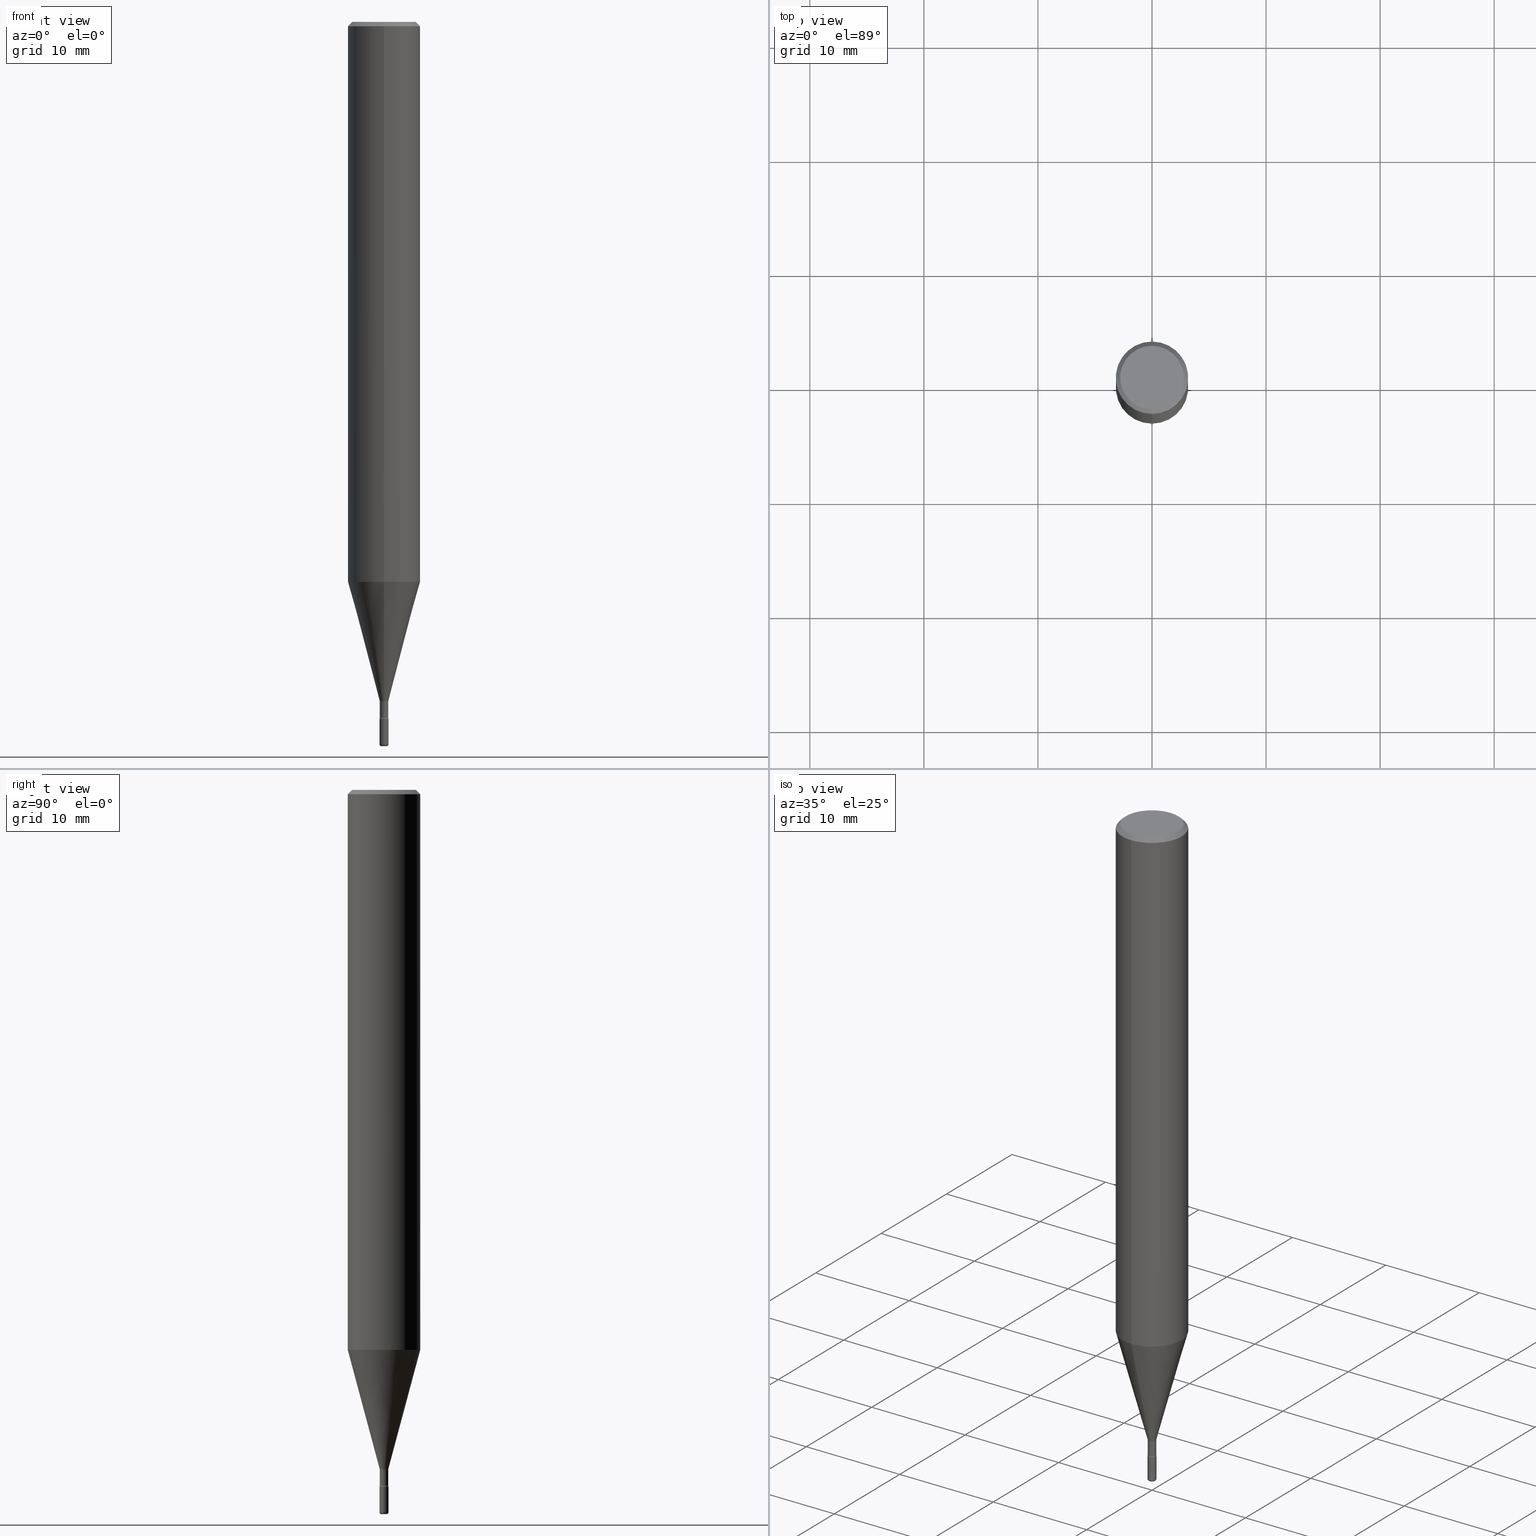
[diagram: canonical four-view strip — front | top / right | iso, engineering-drawing reading convention]
A machine part, canonical four-view strip (front | top / right | iso — engineering-drawing reading convention). The complete STEP part file that produces these views, byte-faithful:
ISO-10303-21;
HEADER;
FILE_DESCRIPTION (( 'STEP AP203' ),
    '1' );
FILE_NAME ('05275.STEP',
    '2024-03-06T20:01:45',
    ( '' ),
    ( '' ),
    'SwSTEP 2.0',
    'SolidWorks 2023',
    '' );
FILE_SCHEMA (( 'CONFIG_CONTROL_DESIGN' ));
ENDSEC;

DATA;
#1 = DIRECTION ( 'NONE',  ( 1.000000000000000000, -6.982962677686283277E-15, 0.000000000000000000 ) ) ;
#2 = ORIENTED_EDGE ( 'NONE', *, *, #518, .F. ) ;
#3 = APPROVAL_ROLE ( '' ) ;
#4 = CC_DESIGN_PERSON_AND_ORGANIZATION_ASSIGNMENT ( #317, #90, ( #110 ) ) ;
#5 = CARTESIAN_POINT ( 'NONE',  ( 8.728703347107836346E-16, 0.1249999999999999445, -0.01500000000000044874 ) ) ;
#6 = ORIENTED_EDGE ( 'NONE', *, *, #202, .F. ) ;
#7 = CYLINDRICAL_SURFACE ( 'NONE', #273, 0.1250000000000000000 ) ;
#8 =( NAMED_UNIT ( * ) PLANE_ANGLE_UNIT ( ) SI_UNIT ( $, .RADIAN. ) );
#9 = EDGE_LOOP ( 'NONE', ( #215, #171, #40, #535 ) ) ;
#10 = APPROVAL_STATUS ( 'not_yet_approved' ) ;
#11 = DIRECTION ( 'NONE',  ( 1.000000000000000000, -6.982962677686283277E-15, 0.000000000000000000 ) ) ;
#12 = AXIS2_PLACEMENT_3D ( 'NONE', #65, #329, #70 ) ;
#13 = EDGE_LOOP ( 'NONE', ( #430, #305, #126, #563 ) ) ;
#14 = LINE ( 'NONE', #183, #230 ) ;
#15 = DIRECTION ( 'NONE',  ( -2.445504170649679612E-29, 3.491430694917099682E-15, 1.000000000000000000 ) ) ;
#16 = LOCAL_TIME ( 15, 1, 45.00000000000000000, #186 ) ;
#17 = EDGE_CURVE ( 'NONE', #343, #174, #294, .T. ) ;
#18 = VERTEX_POINT ( 'NONE', #242 ) ;
#19 = DIRECTION ( 'NONE',  ( -2.445504170649679612E-29, 3.491430694917099682E-15, 1.000000000000000000 ) ) ;
#20 = CC_DESIGN_DATE_AND_TIME_ASSIGNMENT ( #360, #536, ( #66 ) ) ;
#21 = PLANE ( 'NONE',  #41 ) ;
#22 = DIRECTION ( 'NONE',  ( -6.982962677686266711E-15, -1.000000000000000000, 0.000000000000000000 ) ) ;
#23 = CONICAL_SURFACE ( 'NONE', #413, 0.1250000000000000000, 0.7853981633974480570 ) ;
#24 = CYLINDRICAL_SURFACE ( 'NONE', #346, 0.1250000000000000000 ) ;
#25 = CIRCLE ( 'NONE', #480, 0.01516111260566397993 ) ;
#26 = AXIS2_PLACEMENT_3D ( 'NONE', #71, #385, #433 ) ;
#27 = CARTESIAN_POINT ( 'NONE',  ( 4.727570879489775223E-29, -6.749522768821041427E-15, -1.933168193384775746 ) ) ;
#28 = DIRECTION ( 'NONE',  ( -2.445468806185136877E-29, 3.491481338843145188E-15, 1.000000000000000000 ) ) ;
#29 = ORIENTED_EDGE ( 'NONE', *, *, #378, .F. ) ;
#30 = DIRECTION ( 'NONE',  ( -2.445504170649679612E-29, 3.491430694917099682E-15, 1.000000000000000000 ) ) ;
#31 = EDGE_CURVE ( 'NONE', #48, #134, #43, .T. ) ;
#32 = VERTEX_POINT ( 'NONE', #114 ) ;
#33 = AXIS2_PLACEMENT_3D ( 'NONE', #545, #381, #373 ) ;
#34 = ORIENTED_EDGE ( 'NONE', *, *, #197, .F. ) ;
#35 = LOCAL_TIME ( 15, 1, 45.00000000000000000, #83 ) ;
#36 = AXIS2_PLACEMENT_3D ( 'NONE', #253, #104, #462 ) ;
#37 = CARTESIAN_POINT ( 'NONE',  ( 1.077261842800115440E-16, 0.01516111260565579898, -2.343092501787273463 ) ) ;
#38 = EDGE_LOOP ( 'NONE', ( #143, #402, #57, #348 ) ) ;
#39 = CARTESIAN_POINT ( 'NONE',  ( 3.297419770608785039E-46, -4.702870233423703319E-32, -1.347668562248585984E-17 ) ) ;
#40 = ORIENTED_EDGE ( 'NONE', *, *, #341, .T. ) ;
#41 = AXIS2_PLACEMENT_3D ( 'NONE', #150, #460, #335 ) ;
#42 = VERTEX_POINT ( 'NONE', #473 ) ;
#43 = CIRCLE ( 'NONE', #115, 0.1250000000000000000 ) ;
#44 = AXIS2_PLACEMENT_3D ( 'NONE', #363, #533, #408 ) ;
#45 = EDGE_LOOP ( 'NONE', ( #255, #352 ) ) ;
#46 = PERSON_AND_ORGANIZATION ( #166, #396 ) ;
#47 = APPLICATION_CONTEXT ( 'configuration controlled 3d designs of mechanical parts and assemblies' ) ;
#48 = VERTEX_POINT ( 'NONE', #69 ) ;
#49 = PERSON_AND_ORGANIZATION ( #166, #396 ) ;
#50 = CALENDAR_DATE ( 2024, 6, 3 ) ;
#51 = EDGE_CURVE ( 'NONE', #164, #174, #73, .T. ) ;
#52 = CARTESIAN_POINT ( 'NONE',  ( 2.106759211529284454E-16, 0.02964999999999162403, -2.400746667724196204 ) ) ;
#53 = VECTOR ( 'NONE', #60, 39.37007874015748143 ) ;
#54 = PERSON_AND_ORGANIZATION ( #166, #396 ) ;
#55 = DIRECTION ( 'NONE',  ( 2.438088387897960049E-29, -3.491481338843145188E-15, -1.000000000000000000 ) ) ;
#56 = DATE_AND_TIME ( #50, #35 ) ;
#57 = ORIENTED_EDGE ( 'NONE', *, *, #333, .T. ) ;
#58 = CARTESIAN_POINT ( 'NONE',  ( -8.061085147381546509E-16, -0.1100000000000000006, 3.705806908183951404E-16 ) ) ;
#59 = ORIENTED_EDGE ( 'NONE', *, *, #220, .T. ) ;
#60 = DIRECTION ( 'NONE',  ( -2.445468806185136877E-29, 3.491481338843145188E-15, 1.000000000000000000 ) ) ;
#61 = DIRECTION ( 'NONE',  ( 1.000000000000000000, -6.982962677686283277E-15, 0.000000000000000000 ) ) ;
#62 = CARTESIAN_POINT ( 'NONE',  ( 8.881784197001729584E-16, 0.1249999999999999584, -0.01500000000000044874 ) ) ;
#63 = CARTESIAN_POINT ( 'NONE',  ( -2.070448433933404278E-16, -0.02965000000000820105, -2.346974787463811385 ) ) ;
#64 = FACE_OUTER_BOUND ( 'NONE', #531, .T. ) ;
#65 = CARTESIAN_POINT ( 'NONE',  ( 6.113672015462842613E-29, -8.728703347107864943E-15, -2.500000000000000000 ) ) ;
#66 = SECURITY_CLASSIFICATION ( '', '', #401 ) ;
#67 = ORIENTED_EDGE ( 'NONE', *, *, #463, .T. ) ;
#68 = CARTESIAN_POINT ( 'NONE',  ( 3.668256255974522361E-31, -5.237146042375653862E-17, -0.01500000000000001332 ) ) ;
#69 = CARTESIAN_POINT ( 'NONE',  ( -8.728703347107362044E-16, -0.1250000000000067724, -1.933168193384775080 ) ) ;
#70 = DIRECTION ( 'NONE',  ( 1.000000000000000000, -6.982962677686352696E-15, 0.000000000000000000 ) ) ;
#71 = CARTESIAN_POINT ( 'NONE',  ( 3.668256255974522361E-31, -5.237146042375653862E-17, -0.01500000000000001332 ) ) ;
#72 = ORIENTED_EDGE ( 'NONE', *, *, #561, .F. ) ;
#73 = CIRCLE ( 'NONE', #36, 0.1250000000000000000 ) ;
#74 = AXIS2_PLACEMENT_3D ( 'NONE', #153, #108, #427 ) ;
#75 = DIRECTION ( 'NONE',  ( 1.000000000000000000, -6.982962677686265922E-15, 4.876176775795935793E-29 ) ) ;
#76 = VERTEX_POINT ( 'NONE', #552 ) ;
#77 = ORIENTED_EDGE ( 'NONE', *, *, #146, .F. ) ;
#78 = LENGTH_MEASURE_WITH_UNIT ( LENGTH_MEASURE( 0.02539999999999999897 ), #213 );
#79 = CIRCLE ( 'NONE', #565, 0.01559999999999999928 ) ;
#80 = EDGE_CURVE ( 'NONE', #42, #409, #359, .T. ) ;
#81 = FACE_OUTER_BOUND ( 'NONE', #208, .T. ) ;
#82 = ORIENTED_EDGE ( 'NONE', *, *, #252, .T. ) ;
#83 = COORDINATED_UNIVERSAL_TIME_OFFSET ( 5, 0, .BEHIND. ) ;
#84 = FACE_OUTER_BOUND ( 'NONE', #225, .T. ) ;
#85 = ADVANCED_FACE ( 'NONE', ( #163 ), #331, .T. ) ;
#86 = CARTESIAN_POINT ( 'NONE',  ( 5.871035988592842602E-29, -8.382040606412200561E-15, -2.400746667724196204 ) ) ;
#87 = EDGE_LOOP ( 'NONE', ( #492, #176, #185, #375 ) ) ;
#88 = DIRECTION ( 'NONE',  ( 1.000000000000000000, -6.982962677686283277E-15, 0.000000000000000000 ) ) ;
#89 = FACE_OUTER_BOUND ( 'NONE', #256, .T. ) ;
#90 = PERSON_AND_ORGANIZATION_ROLE ( 'design_owner' ) ;
#91 = EDGE_CURVE ( 'NONE', #130, #267, #141, .T. ) ;
#92 = LINE ( 'NONE', #278, #118 ) ;
#93 = TOROIDAL_SURFACE ( 'NONE', #393, 0.009599999999999999159, 0.005999999999999941144 ) ;
#94 = AXIS2_PLACEMENT_3D ( 'NONE', #95, #137, #450 ) ;
#95 = CARTESIAN_POINT ( 'NONE',  ( 5.739536631152396078E-29, -8.194299813147687429E-15, -2.346974787463811385 ) ) ;
#96 = LINE ( 'NONE', #370, #568 ) ;
#97 = AXIS2_PLACEMENT_3D ( 'NONE', #27, #30, #113 ) ;
#98 = DIRECTION ( 'NONE',  ( 1.000000000000000000, -6.982962677686310098E-15, 4.883557194083128035E-29 ) ) ;
#99 = CARTESIAN_POINT ( 'NONE',  ( 6.098999202625731237E-29, -8.707754459074805322E-15, -2.494000000000000217 ) ) ;
#100 = CC_DESIGN_APPROVAL ( #326, ( #194 ) ) ;
#101 = AXIS2_PLACEMENT_3D ( 'NONE', #429, #200, #22 ) ;
#102 = EDGE_LOOP ( 'NONE', ( #145, #400 ) ) ;
#103 = DIRECTION ( 'NONE',  ( -6.982962677686265922E-15, -1.000000000000000000, 3.491430694917099682E-15 ) ) ;
#104 = DIRECTION ( 'NONE',  ( -2.445504170649679612E-29, 3.491430694917099682E-15, 1.000000000000000000 ) ) ;
#105 = DATE_AND_TIME ( #239, #265 ) ;
#106 = ADVANCED_FACE ( 'NONE', ( #289 ), #407, .F. ) ;
#107 = FACE_OUTER_BOUND ( 'NONE', #210, .T. ) ;
#108 = DIRECTION ( 'NONE',  ( -2.445468806185136597E-29, 3.491481338843145583E-15, 1.000000000000000000 ) ) ;
#109 = DESIGN_CONTEXT ( 'detailed design', #47, 'design' ) ;
#110 = PRODUCT ( '05275', '05275', '', ( #277 ) ) ;
#111 = AXIS2_PLACEMENT_3D ( 'NONE', #474, #206, #241 ) ;
#112 = ADVANCED_FACE ( 'NONE', ( #476 ), #549, .T. ) ;
#113 = DIRECTION ( 'NONE',  ( -6.982962677686265922E-15, -1.000000000000000000, 4.370956789862821150E-15 ) ) ;
#114 = CARTESIAN_POINT ( 'NONE',  ( -1.089342177718470831E-16, -0.01560000000000842484, -2.406000000000000139 ) ) ;
#115 = AXIS2_PLACEMENT_3D ( 'NONE', #337, #212, #516 ) ;
#116 = CYLINDRICAL_SURFACE ( 'NONE', #218, 0.01464999999999997554 ) ;
#117 = DIRECTION ( 'NONE',  ( -2.445504170649679612E-29, 3.491430694917099682E-15, 1.000000000000000000 ) ) ;
#118 = VECTOR ( 'NONE', #272, 39.37007874015748854 ) ;
#119 = CARTESIAN_POINT ( 'NONE',  ( -1.023004032280447656E-16, -0.01465000000000833691, -2.400746667724196204 ) ) ;
#120 = MANIFOLD_SOLID_BREP ( 'Body-Move/Copy2[2]', #499 ) ;
#121 = EDGE_LOOP ( 'NONE', ( #222, #391, #389, #34 ) ) ;
#122 = CIRCLE ( 'NONE', #203, 0.01464999999999995473 ) ;
#123 = MANIFOLD_SOLID_BREP ( 'Body-Move/Copy2[1]', #394 ) ;
#124 = AXIS2_PLACEMENT_3D ( 'NONE', #432, #129, #388 ) ;
#125 = CARTESIAN_POINT ( 'NONE',  ( 6.703644170584928965E-17, 0.009599999999991271765, -2.500000000000000000 ) ) ;
#126 = ORIENTED_EDGE ( 'NONE', *, *, #445, .F. ) ;
#127 = CARTESIAN_POINT ( 'NONE',  ( 5.883797947681438535E-29, -8.400504101256608072E-15, -2.406000000000000139 ) ) ;
#128 = VERTEX_POINT ( 'NONE', #398 ) ;
#129 = DIRECTION ( 'NONE',  ( -2.445504170649679612E-29, 3.491430694917099682E-15, 1.000000000000000000 ) ) ;
#130 = VERTEX_POINT ( 'NONE', #491 ) ;
#131 = PERSON_AND_ORGANIZATION_ROLE ( 'classification_officer' ) ;
#132 = FACE_OUTER_BOUND ( 'NONE', #311, .T. ) ;
#133 = EDGE_CURVE ( 'NONE', #223, #149, #229, .T. ) ;
#134 = VERTEX_POINT ( 'NONE', #157 ) ;
#135 = CARTESIAN_POINT ( 'NONE',  ( -1.058694834774930434E-16, -0.01516111260567216089, -2.343092501787273463 ) ) ;
#136 = ORIENTED_EDGE ( 'NONE', *, *, #371, .F. ) ;
#137 = DIRECTION ( 'NONE',  ( -2.445504170649679612E-29, 3.491430694917099682E-15, 1.000000000000000000 ) ) ;
#138 = AXIS2_PLACEMENT_3D ( 'NONE', #198, #377, #103 ) ;
#139 = APPROVAL_DATE_TIME ( #412, #326 ) ;
#140 = CARTESIAN_POINT ( 'NONE',  ( 5.730042485338768716E-29, -8.180745081770186080E-15, -2.343092501787273463 ) ) ;
#141 = CIRCLE ( 'NONE', #74, 0.009600000000000000894 ) ;
#142 = CIRCLE ( 'NONE', #124, 0.01464999999999999983 ) ;
#143 = ORIENTED_EDGE ( 'NONE', *, *, #80, .F. ) ;
#144 = LINE ( 'NONE', #361, #53 ) ;
#145 = ORIENTED_EDGE ( 'NONE', *, *, #543, .F. ) ;
#146 = EDGE_CURVE ( 'NONE', #149, #223, #122, .T. ) ;
#147 = DIRECTION ( 'NONE',  ( -2.445504170649679612E-29, 3.491430694917099682E-15, 1.000000000000000000 ) ) ;
#148 = TOROIDAL_SURFACE ( 'NONE', #138, 0.02965000000000000274, 0.01500000000000002720 ) ;
#149 = VERTEX_POINT ( 'NONE', #162 ) ;
#150 = CARTESIAN_POINT ( 'NONE',  ( 1.089342177719645864E-16, 0.01559999999999159802, -2.406000000000000139 ) ) ;
#151 = CARTESIAN_POINT ( 'NONE',  ( -8.728703347107828458E-16, -0.1250000000000000555, -0.01499999999999957791 ) ) ;
#152 = VECTOR ( 'NONE', #28, 39.37007874015748143 ) ;
#153 = CARTESIAN_POINT ( 'NONE',  ( 6.113672015462842613E-29, -8.728703347107864943E-15, -2.500000000000000000 ) ) ;
#154 = DIRECTION ( 'NONE',  ( -1.000000000000000000, 6.982962677686265922E-15, -4.883557194083112340E-29 ) ) ;
#155 = ORIENTED_EDGE ( 'NONE', *, *, #571, .F. ) ;
#156 = ORIENTED_EDGE ( 'NONE', *, *, #426, .F. ) ;
#157 = CARTESIAN_POINT ( 'NONE',  ( 8.881784197001723668E-16, 0.1249999999999932554, -1.933168193384776190 ) ) ;
#158 = DIRECTION ( 'NONE',  ( 6.982962677686265922E-15, 1.000000000000000000, -3.483106191921935554E-15 ) ) ;
#159 = ORIENTED_EDGE ( 'NONE', *, *, #445, .T. ) ;
#160 = ADVANCED_FACE ( 'NONE', ( #520 ), #93, .T. ) ;
#161 = CARTESIAN_POINT ( 'NONE',  ( 6.098999202625731237E-29, -8.707754459074805322E-15, -2.494000000000000217 ) ) ;
#162 = CARTESIAN_POINT ( 'NONE',  ( 1.074695887837739447E-16, 0.01464999999999157601, -2.400746667724196204 ) ) ;
#163 = FACE_OUTER_BOUND ( 'NONE', #13, .T. ) ;
#164 = VERTEX_POINT ( 'NONE', #62 ) ;
#165 = DIRECTION ( 'NONE',  ( -6.982962677686266711E-15, -1.000000000000000000, 3.491430694917099682E-15 ) ) ;
#166 = PERSON ( 'UNSPECIFIED', 'UNSPECIFIED', 'UNSPECIFIED', ('UNSPECIFIED'), ('UNSPECIFIED'), ('UNSPECIFIED') ) ;
#167 = ORIENTED_EDGE ( 'NONE', *, *, #146, .T. ) ;
#168 = AXIS2_PLACEMENT_3D ( 'NONE', #63, #209, #196 ) ;
#169 = DIRECTION ( 'NONE',  ( -2.445504170649679612E-29, 3.491430694917099682E-15, 1.000000000000000000 ) ) ;
#170 = CIRCLE ( 'NONE', #245, 0.01559999999999999928 ) ;
#171 = ORIENTED_EDGE ( 'NONE', *, *, #561, .T. ) ;
#172 = AXIS2_PLACEMENT_3D ( 'NONE', #52, #187, #321 ) ;
#173 = LINE ( 'NONE', #5, #221 ) ;
#174 = VERTEX_POINT ( 'NONE', #151 ) ;
#175 = DIRECTION ( 'NONE',  ( -2.445504170649679612E-29, 3.491430694917099682E-15, 1.000000000000000000 ) ) ;
#176 = ORIENTED_EDGE ( 'NONE', *, *, #249, .F. ) ;
#177 = PERSON_AND_ORGANIZATION ( #166, #396 ) ;
#178 = ADVANCED_FACE ( 'NONE', ( #64 ), #24, .T. ) ;
#179 = CIRCLE ( 'NONE', #12, 0.009600000000000000894 ) ;
#180 = CARTESIAN_POINT ( 'NONE',  ( 0.009599999999999999159, -8.774790900780594215E-15, -2.494000000000000217 ) ) ;
#181 = ORIENTED_EDGE ( 'NONE', *, *, #133, .F. ) ;
#182 = CALENDAR_DATE ( 2024, 6, 3 ) ;
#183 = CARTESIAN_POINT ( 'NONE',  ( 8.881784197001251337E-16, 0.1250000000000000000, 4.164456202660859682E-17 ) ) ;
#184 = DIRECTION ( 'NONE',  ( -1.000000000000000000, 6.982962677686265922E-15, -4.876176775795935793E-29 ) ) ;
#185 = ORIENTED_EDGE ( 'NONE', *, *, #197, .T. ) ;
#186 = COORDINATED_UNIVERSAL_TIME_OFFSET ( 5, 0, .BEHIND. ) ;
#187 = DIRECTION ( 'NONE',  ( 1.000000000000000000, -7.105427357601001070E-15, 4.926314888332863338E-29 ) ) ;
#188 = EDGE_CURVE ( 'NONE', #567, #76, #467, .T. ) ;
#189 = APPROVAL_DATE_TIME ( #105, #211 ) ;
#190 = CIRCLE ( 'NONE', #94, 0.01464999999999999983 ) ;
#191 = AXIS2_PLACEMENT_3D ( 'NONE', #447, #227, #276 ) ;
#192 = ORIENTED_EDGE ( 'NONE', *, *, #243, .F. ) ;
#193 = CARTESIAN_POINT ( 'NONE',  ( -1.169113584055446105E-44, 1.669184350826100908E-30, 4.780733988912460139E-16 ) ) ;
#194 = PRODUCT_DEFINITION_FORMATION_WITH_SPECIFIED_SOURCE ( 'ANY', '', #110, .NOT_KNOWN. ) ;
#195 = ORIENTED_EDGE ( 'NONE', *, *, #490, .T. ) ;
#196 = DIRECTION ( 'NONE',  ( -6.982962677686269077E-15, -1.000000000000000000, 0.000000000000000000 ) ) ;
#197 = EDGE_CURVE ( 'NONE', #18, #164, #173, .T. ) ;
#198 = CARTESIAN_POINT ( 'NONE',  ( 5.739453631645741836E-29, -8.194418673165254472E-15, -2.346974787463811385 ) ) ;
#199 = AXIS2_PLACEMENT_3D ( 'NONE', #288, #19, #292 ) ;
#200 = DIRECTION ( 'NONE',  ( -2.445504170649679612E-29, 3.491430694917099682E-15, 1.000000000000000000 ) ) ;
#201 = DIRECTION ( 'NONE',  ( -2.445504170649679612E-29, 3.491430694917099682E-15, 1.000000000000000000 ) ) ;
#202 = EDGE_CURVE ( 'NONE', #397, #76, #170, .T. ) ;
#203 = AXIS2_PLACEMENT_3D ( 'NONE', #387, #15, #506 ) ;
#204 = CARTESIAN_POINT ( 'NONE',  ( -1.169113584055446105E-44, 1.669184350826100908E-30, 4.780733988912460139E-16 ) ) ;
#205 = SHAPE_DEFINITION_REPRESENTATION ( #328, #314 ) ;
#206 = DIRECTION ( 'NONE',  ( -2.445504170649679612E-29, 3.491430694917099682E-15, 1.000000000000000000 ) ) ;
#207 = EDGE_LOOP ( 'NONE', ( #322, #82, #217, #304 ) ) ;
#208 = EDGE_LOOP ( 'NONE', ( #159, #340 ) ) ;
#209 = DIRECTION ( 'NONE',  ( -1.000000000000000000, 6.982962677686265922E-15, -4.883557194083112340E-29 ) ) ;
#210 = EDGE_LOOP ( 'NONE', ( #155, #167, #307, #386 ) ) ;
#211 = APPROVAL ( #270, 'UNSPECIFIED' ) ;
#212 = DIRECTION ( 'NONE',  ( -2.445504170649679612E-29, 3.491430694917099682E-15, 1.000000000000000000 ) ) ;
#213 =( LENGTH_UNIT ( ) NAMED_UNIT ( * ) SI_UNIT ( $, .METRE. ) );
#214 = DIRECTION ( 'NONE',  ( 1.839019923739598738E-15, 0.2588190451025247363, 0.9659258262890673130 ) ) ;
#215 = ORIENTED_EDGE ( 'NONE', *, *, #252, .F. ) ;
#216 = CYLINDRICAL_SURFACE ( 'NONE', #442, 0.01464999999999997554 ) ;
#217 = ORIENTED_EDGE ( 'NONE', *, *, #379, .F. ) ;
#218 = AXIS2_PLACEMENT_3D ( 'NONE', #418, #147, #285 ) ;
#219 = FACE_OUTER_BOUND ( 'NONE', #478, .T. ) ;
#220 = EDGE_CURVE ( 'NONE', #409, #42, #25, .T. ) ;
#221 = VECTOR ( 'NONE', #522, 39.37007874015748143 ) ;
#222 = ORIENTED_EDGE ( 'NONE', *, *, #416, .F. ) ;
#223 = VERTEX_POINT ( 'NONE', #119 ) ;
#224 = PERSON_AND_ORGANIZATION ( #166, #396 ) ;
#225 = EDGE_LOOP ( 'NONE', ( #357, #72 ) ) ;
#226 = CALENDAR_DATE ( 2024, 6, 3 ) ;
#227 = DIRECTION ( 'NONE',  ( -2.445468806185136597E-29, 3.491481338843145583E-15, 1.000000000000000000 ) ) ;
#228 = PERSON_AND_ORGANIZATION_ROLE ( 'design_supplier' ) ;
#229 = CIRCLE ( 'NONE', #376, 0.01464999999999995473 ) ;
#230 = VECTOR ( 'NONE', #232, 39.37007874015748143 ) ;
#231 = FACE_OUTER_BOUND ( 'NONE', #102, .T. ) ;
#232 = DIRECTION ( 'NONE',  ( -2.445504170649679332E-29, 3.491430694917099288E-15, 1.000000000000000000 ) ) ;
#233 = ADVANCED_FACE ( 'NONE', ( #81 ), #351, .T. ) ;
#234 = APPROVAL_ROLE ( '' ) ;
#235 = VERTEX_POINT ( 'NONE', #486 ) ;
#236 = CARTESIAN_POINT ( 'NONE',  ( 6.098999202625731237E-29, -8.707754459074805322E-15, -2.494000000000000217 ) ) ;
#237 = ORIENTED_EDGE ( 'NONE', *, *, #459, .T. ) ;
#238 = DIRECTION ( 'NONE',  ( -2.445468806185136597E-29, 3.491481338843145583E-15, 1.000000000000000000 ) ) ;
#239 = CALENDAR_DATE ( 2024, 6, 3 ) ;
#240 = EDGE_CURVE ( 'NONE', #42, #134, #529, .T. ) ;
#241 = DIRECTION ( 'NONE',  ( -6.982962677686265922E-15, -1.000000000000000000, 3.491430694917099682E-15 ) ) ;
#242 = CARTESIAN_POINT ( 'NONE',  ( 8.204981146281364568E-16, 0.1100000000000000006, -3.975340620633668508E-16 ) ) ;
#243 = EDGE_CURVE ( 'NONE', #235, #128, #142, .T. ) ;
#244 = CARTESIAN_POINT ( 'NONE',  ( 0.01559999999999996979, -8.816688676846711878E-15, -2.494000000000000217 ) ) ;
#245 = AXIS2_PLACEMENT_3D ( 'NONE', #127, #299, #1 ) ;
#246 = CARTESIAN_POINT ( 'NONE',  ( 1.040945107888544911E-16, 0.01464999999999997554, 4.269239392107106681E-16 ) ) ;
#247 = ORIENTED_EDGE ( 'NONE', *, *, #571, .T. ) ;
#248 = DIRECTION ( 'NONE',  ( -6.982962677686265922E-15, -1.000000000000000000, 3.483106191921935554E-15 ) ) ;
#249 = EDGE_CURVE ( 'NONE', #18, #343, #275, .T. ) ;
#250 = CARTESIAN_POINT ( 'NONE',  ( 0.000000000000000000, 0.000000000000000000, 0.000000000000000000 ) ) ;
#251 = CARTESIAN_POINT ( 'NONE',  ( 5.883883034583129831E-29, -8.400382251970541241E-15, -2.406000000000000139 ) ) ;
#252 = EDGE_CURVE ( 'NONE', #267, #555, #541, .T. ) ;
#253 = CARTESIAN_POINT ( 'NONE',  ( 3.668256255974522361E-31, -5.237146042375653862E-17, -0.01500000000000001332 ) ) ;
#254 = AXIS2_PLACEMENT_3D ( 'NONE', #250, #512, #548 ) ;
#255 = ORIENTED_EDGE ( 'NONE', *, *, #249, .T. ) ;
#256 = EDGE_LOOP ( 'NONE', ( #59, #446, #423, #156 ) ) ;
#257 = CARTESIAN_POINT ( 'NONE',  ( 5.730042485338768716E-29, -8.180745081770186080E-15, -2.343092501787273463 ) ) ;
#258 = ORIENTED_EDGE ( 'NONE', *, *, #378, .T. ) ;
#259 = AXIS2_PLACEMENT_3D ( 'NONE', #324, #465, #425 ) ;
#260 = DIRECTION ( 'NONE',  ( 7.105427357601001859E-15, 1.000000000000000000, -3.491481338843145583E-15 ) ) ;
#261 = ADVANCED_FACE ( 'NONE', ( #219 ), #216, .T. ) ;
#262 = AXIS2_PLACEMENT_3D ( 'NONE', #180, #504, #495 ) ;
#263 = ORIENTED_EDGE ( 'NONE', *, *, #240, .F. ) ;
#264 = DATE_TIME_ROLE ( 'creation_date' ) ;
#265 = LOCAL_TIME ( 15, 1, 45.00000000000000000, #279 ) ;
#266 = DIRECTION ( 'NONE',  ( -2.445504170649679612E-29, 3.491430694917099682E-15, 1.000000000000000000 ) ) ;
#267 = VERTEX_POINT ( 'NONE', #489 ) ;
#268 = DATE_AND_TIME ( #453, #451 ) ;
#269 = PLANE ( 'NONE',  #44 ) ;
#270 = APPROVAL_STATUS ( 'not_yet_approved' ) ;
#271 = CIRCLE ( 'NONE', #259, 0.01559999999999999928 ) ;
#272 = DIRECTION ( 'NONE',  ( -1.807323732225328562E-15, -0.2588190451025179639, 0.9659258262890690894 ) ) ;
#273 = AXIS2_PLACEMENT_3D ( 'NONE', #193, #502, #323 ) ;
#274 = COORDINATED_UNIVERSAL_TIME_OFFSET ( 5, 0, .BEHIND. ) ;
#275 = CIRCLE ( 'NONE', #517, 0.1100000000000000006 ) ;
#276 = DIRECTION ( 'NONE',  ( 1.000000000000000000, -6.982962677686266711E-15, 4.876176775795935793E-29 ) ) ;
#277 = MECHANICAL_CONTEXT ( 'NONE', #283, 'mechanical' ) ;
#278 = CARTESIAN_POINT ( 'NONE',  ( -1.058694834774930434E-16, -0.01516111260567216089, -2.343092501787273463 ) ) ;
#279 = COORDINATED_UNIVERSAL_TIME_OFFSET ( 5, 0, .BEHIND. ) ;
#280 = DIRECTION ( 'NONE',  ( -2.445504170649679332E-29, 3.491430694917099288E-15, 1.000000000000000000 ) ) ;
#281 = TOROIDAL_SURFACE ( 'NONE', #448, 0.009599999999999999159, 0.005999999999999941144 ) ;
#282 = VERTEX_POINT ( 'NONE', #344 ) ;
#283 = APPLICATION_CONTEXT ( 'configuration controlled 3d designs of mechanical parts and assemblies' ) ;
#284 = CC_DESIGN_APPROVAL ( #503, ( #440 ) ) ;
#285 = DIRECTION ( 'NONE',  ( -6.982962677686265922E-15, -1.000000000000000000, 3.491430694917098104E-15 ) ) ;
#286 = CC_DESIGN_DATE_AND_TIME_ASSIGNMENT ( #56, #264, ( #440 ) ) ;
#287 = DIRECTION ( 'NONE',  ( -2.445504170649679612E-29, 3.491430694917099682E-15, 1.000000000000000000 ) ) ;
#288 = CARTESIAN_POINT ( 'NONE',  ( 5.739453631645741836E-29, -8.194418673165254472E-15, -2.346974787463811385 ) ) ;
#289 = FACE_OUTER_BOUND ( 'NONE', #431, .T. ) ;
#290 =( GEOMETRIC_REPRESENTATION_CONTEXT ( 3 ) GLOBAL_UNCERTAINTY_ASSIGNED_CONTEXT ( ( #332 ) ) GLOBAL_UNIT_ASSIGNED_CONTEXT ( ( #392, #8, #362 ) ) REPRESENTATION_CONTEXT ( 'NONE', 'WORKASPACE' ) );
#291 = AXIS2_PLACEMENT_3D ( 'NONE', #570, #260, #310 ) ;
#292 = DIRECTION ( 'NONE',  ( -6.982962677686265922E-15, -1.000000000000000000, 3.491430694917099682E-15 ) ) ;
#293 = VECTOR ( 'NONE', #214, 39.37007874015748854 ) ;
#294 = LINE ( 'NONE', #383, #301 ) ;
#295 = FACE_OUTER_BOUND ( 'NONE', #207, .T. ) ;
#296 = ADVANCED_FACE ( 'NONE', ( #84 ), #526, .T. ) ;
#297 = DIRECTION ( 'NONE',  ( -6.982962677686265922E-15, -1.000000000000000000, 3.491430694917099682E-15 ) ) ;
#298 = ORIENTED_EDGE ( 'NONE', *, *, #319, .F. ) ;
#299 = DIRECTION ( 'NONE',  ( -2.445468806185136597E-29, 3.491481338843145583E-15, 1.000000000000000000 ) ) ;
#300 = CIRCLE ( 'NONE', #97, 0.1250000000000000000 ) ;
#301 = VECTOR ( 'NONE', #327, 39.37007874015748143 ) ;
#302 = CIRCLE ( 'NONE', #172, 0.01500000000000005322 ) ;
#303 = PRODUCT_RELATED_PRODUCT_CATEGORY ( 'detail', '', ( #110 ) ) ;
#304 = ORIENTED_EDGE ( 'NONE', *, *, #341, .F. ) ;
#305 = ORIENTED_EDGE ( 'NONE', *, *, #371, .T. ) ;
#306 = DIRECTION ( 'NONE',  ( -2.438088387897960049E-29, 3.491481338843145188E-15, 1.000000000000000000 ) ) ;
#307 = ORIENTED_EDGE ( 'NONE', *, *, #368, .T. ) ;
#308 = DIRECTION ( 'NONE',  ( 0.000000000000000000, 0.000000000000000000, 1.000000000000000000 ) ) ;
#309 = CC_DESIGN_PERSON_AND_ORGANIZATION_ASSIGNMENT ( #224, #228, ( #194 ) ) ;
#310 = DIRECTION ( 'NONE',  ( -1.000000000000000000, 7.105427357600931650E-15, 0.000000000000000000 ) ) ;
#311 = EDGE_LOOP ( 'NONE', ( #136, #380, #556, #6 ) ) ;
#312 = COORDINATED_UNIVERSAL_TIME_OFFSET ( 5, 0, .BEHIND. ) ;
#313 = DIRECTION ( 'NONE',  ( -2.445504170649679332E-29, 3.491430694917099288E-15, 1.000000000000000000 ) ) ;
#314 = ADVANCED_BREP_SHAPE_REPRESENTATION ( '05275', ( #123, #120, #441 ), #290 ) ;
#315 = DIRECTION ( 'NONE',  ( -6.982962677686266711E-15, -1.000000000000000000, 3.491430694917099682E-15 ) ) ;
#316 = ADVANCED_FACE ( 'NONE', ( #454 ), #7, .T. ) ;
#317 = PERSON_AND_ORGANIZATION ( #166, #396 ) ;
#318 = CARTESIAN_POINT ( 'NONE',  ( 3.297419770608785039E-46, -4.702870233423703319E-32, -1.347668562248585984E-17 ) ) ;
#319 = EDGE_CURVE ( 'NONE', #134, #164, #14, .T. ) ;
#320 = AXIS2_PLACEMENT_3D ( 'NONE', #414, #238, #88 ) ;
#321 = DIRECTION ( 'NONE',  ( 7.105427357601000281E-15, 1.000000000000000000, 0.000000000000000000 ) ) ;
#322 = ORIENTED_EDGE ( 'NONE', *, *, #91, .T. ) ;
#323 = DIRECTION ( 'NONE',  ( -6.982962677686265922E-15, -1.000000000000000000, 3.491430694917099682E-15 ) ) ;
#324 = CARTESIAN_POINT ( 'NONE',  ( 5.883883034583129831E-29, -8.400382251970541241E-15, -2.406000000000000139 ) ) ;
#325 = CONICAL_SURFACE ( 'NONE', #374, 0.01516111260566397993, 0.2617993877991500740 ) ;
#326 = APPROVAL ( #10, 'UNSPECIFIED' ) ;
#327 = DIRECTION ( 'NONE',  ( -4.851104656540962697E-15, -0.7071067811865497932, -0.7071067811865452413 ) ) ;
#328 = PRODUCT_DEFINITION_SHAPE ( 'NONE', 'NONE',  #440 ) ;
#329 = DIRECTION ( 'NONE',  ( -2.445468806185136597E-29, 3.491481338843145583E-15, 1.000000000000000000 ) ) ;
#330 = DIRECTION ( 'NONE',  ( -6.982962677686265922E-15, -1.000000000000000000, 3.491430694917099682E-15 ) ) ;
#331 = CYLINDRICAL_SURFACE ( 'NONE', #254, 0.01559999999999999928 ) ;
#332 = UNCERTAINTY_MEASURE_WITH_UNIT (LENGTH_MEASURE( 1.000000000000000082E-05 ), #392, 'distance_accuracy_value', 'NONE');
#333 = EDGE_CURVE ( 'NONE', #128, #235, #190, .T. ) ;
#334 = ORIENTED_EDGE ( 'NONE', *, *, #475, .T. ) ;
#335 = DIRECTION ( 'NONE',  ( -6.982962677686265922E-15, -1.000000000000000000, 3.491430694917099288E-15 ) ) ;
#336 = DIMENSIONAL_EXPONENTS ( 1.000000000000000000, 0.000000000000000000, 0.000000000000000000, 0.000000000000000000, 0.000000000000000000, 0.000000000000000000, 0.000000000000000000 ) ;
#337 = CARTESIAN_POINT ( 'NONE',  ( 4.727570879489775223E-29, -6.749522768821041427E-15, -1.933168193384775746 ) ) ;
#338 = ORIENTED_EDGE ( 'NONE', *, *, #31, .T. ) ;
#339 = FACE_OUTER_BOUND ( 'NONE', #87, .T. ) ;
#340 = ORIENTED_EDGE ( 'NONE', *, *, #202, .T. ) ;
#341 = EDGE_CURVE ( 'NONE', #130, #567, #470, .T. ) ;
#342 = TOROIDAL_SURFACE ( 'NONE', #111, 0.02965000000000000968, 0.01500000000000005322 ) ;
#343 = VERTEX_POINT ( 'NONE', #58 ) ;
#344 = CARTESIAN_POINT ( 'NONE',  ( 1.108446667786346406E-16, 0.01559999999999162404, -2.406000000000000139 ) ) ;
#345 = APPROVAL_PERSON_ORGANIZATION ( #494, #211, #507 ) ;
#346 = AXIS2_PLACEMENT_3D ( 'NONE', #204, #472, #330 ) ;
#347 = ORIENTED_EDGE ( 'NONE', *, *, #543, .T. ) ;
#348 = ORIENTED_EDGE ( 'NONE', *, *, #459, .F. ) ;
#349 = CARTESIAN_POINT ( 'NONE',  ( 0.000000000000000000, 0.000000000000000000, 0.000000000000000000 ) ) ;
#350 = EDGE_CURVE ( 'NONE', #555, #567, #550, .T. ) ;
#351 = PLANE ( 'NONE',  #367 ) ;
#352 = ORIENTED_EDGE ( 'NONE', *, *, #416, .T. ) ;
#353 = PERSON_AND_ORGANIZATION_ROLE ( 'creator' ) ;
#354 = CIRCLE ( 'NONE', #466, 0.01500000000000005322 ) ;
#355 = CC_DESIGN_PERSON_AND_ORGANIZATION_ASSIGNMENT ( #54, #353, ( #440 ) ) ;
#356 = LINE ( 'NONE', #458, #501 ) ;
#357 = ORIENTED_EDGE ( 'NONE', *, *, #91, .F. ) ;
#358 = LOCAL_TIME ( 15, 1, 45.00000000000000000, #312 ) ;
#359 = CIRCLE ( 'NONE', #101, 0.01516111260566397993 ) ;
#360 = DATE_AND_TIME ( #226, #358 ) ;
#361 = CARTESIAN_POINT ( 'NONE',  ( -0.01559999999999999928, 1.108446667785756239E-16, -7.673538740797652489E-31 ) ) ;
#362 =( NAMED_UNIT ( * ) SI_UNIT ( $, .STERADIAN. ) SOLID_ANGLE_UNIT ( ) );
#363 = CARTESIAN_POINT ( 'NONE',  ( 7.681258945454893776E-16, 0.1100000000000000006, -1.517590198065008793E-16 ) ) ;
#364 = EDGE_CURVE ( 'NONE', #149, #282, #302, .T. ) ;
#365 = DIRECTION ( 'NONE',  ( 1.000000000000000000, 0.000000000000000000, 0.000000000000000000 ) ) ;
#366 = CARTESIAN_POINT ( 'NONE',  ( 5.730042485338768716E-29, -8.180745081770186080E-15, -2.343092501787273463 ) ) ;
#367 = AXIS2_PLACEMENT_3D ( 'NONE', #436, #306, #75 ) ;
#368 = EDGE_CURVE ( 'NONE', #223, #235, #96, .T. ) ;
#369 = CC_DESIGN_APPROVAL ( #211, ( #66 ) ) ;
#370 = CARTESIAN_POINT ( 'NONE',  ( -1.023004032281036220E-16, -0.01464999999999997554, 5.292228585717814583E-16 ) ) ;
#371 = EDGE_CURVE ( 'NONE', #555, #397, #144, .T. ) ;
#372 = DIRECTION ( 'NONE',  ( -6.982962677686265922E-15, -1.000000000000000000, 0.000000000000000000 ) ) ;
#373 = DIRECTION ( 'NONE',  ( 7.105427357601003436E-15, 1.000000000000000000, 0.000000000000000000 ) ) ;
#374 = AXIS2_PLACEMENT_3D ( 'NONE', #140, #411, #497 ) ;
#375 = ORIENTED_EDGE ( 'NONE', *, *, #51, .T. ) ;
#376 = AXIS2_PLACEMENT_3D ( 'NONE', #86, #266, #415 ) ;
#377 = DIRECTION ( 'NONE',  ( -2.445504170649679612E-29, 3.491430694917099682E-15, 1.000000000000000000 ) ) ;
#378 = EDGE_CURVE ( 'NONE', #48, #174, #356, .T. ) ;
#379 = EDGE_CURVE ( 'NONE', #567, #555, #569, .T. ) ;
#380 = ORIENTED_EDGE ( 'NONE', *, *, #350, .T. ) ;
#381 = DIRECTION ( 'NONE',  ( 1.000000000000000000, -7.105427357601001070E-15, 4.926314888332863338E-29 ) ) ;
#382 = CIRCLE ( 'NONE', #404, 0.1100000000000000006 ) ;
#383 = CARTESIAN_POINT ( 'NONE',  ( -8.575622497214409523E-16, -0.1250000000000000555, -0.01499999999999957791 ) ) ;
#384 = ADVANCED_FACE ( 'NONE', ( #417 ), #269, .F. ) ;
#385 = DIRECTION ( 'NONE',  ( 2.445504170649679612E-29, -3.491430694917099682E-15, -1.000000000000000000 ) ) ;
#386 = ORIENTED_EDGE ( 'NONE', *, *, #333, .F. ) ;
#387 = CARTESIAN_POINT ( 'NONE',  ( 5.871035988592842602E-29, -8.382040606412200561E-15, -2.400746667724196204 ) ) ;
#388 = DIRECTION ( 'NONE',  ( -6.982962677686265922E-15, -1.000000000000000000, 0.000000000000000000 ) ) ;
#389 = ORIENTED_EDGE ( 'NONE', *, *, #518, .T. ) ;
#390 = AXIS2_PLACEMENT_3D ( 'NONE', #366, #544, #540 ) ;
#391 = ORIENTED_EDGE ( 'NONE', *, *, #17, .T. ) ;
#392 =( CONVERSION_BASED_UNIT ( 'INCH', #78 ) LENGTH_UNIT ( ) NAMED_UNIT ( #336 ) );
#393 = AXIS2_PLACEMENT_3D ( 'NONE', #99, #419, #461 ) ;
#394 = CLOSED_SHELL ( 'NONE', ( #85, #449, #233, #296, #160, #395 ) ) ;
#395 = ADVANCED_FACE ( 'NONE', ( #132 ), #493, .T. ) ;
#396 = ORGANIZATION ( 'UNSPECIFIED', 'UNSPECIFIED', '' ) ;
#397 = VERTEX_POINT ( 'NONE', #537 ) ;
#398 = CARTESIAN_POINT ( 'NONE',  ( 1.040945107889133845E-16, 0.01464999999999180673, -2.346974787463811385 ) ) ;
#399 = CC_DESIGN_PERSON_AND_ORGANIZATION_ASSIGNMENT ( #46, #532, ( #194 ) ) ;
#400 = ORIENTED_EDGE ( 'NONE', *, *, #463, .F. ) ;
#401 = SECURITY_CLASSIFICATION_LEVEL ( 'unclassified' ) ;
#402 = ORIENTED_EDGE ( 'NONE', *, *, #524, .T. ) ;
#403 = PERSON_AND_ORGANIZATION ( #166, #396 ) ;
#404 = AXIS2_PLACEMENT_3D ( 'NONE', #318, #452, #315 ) ;
#405 = ADVANCED_FACE ( 'NONE', ( #539 ), #508, .T. ) ;
#406 = DIRECTION ( 'NONE',  ( -2.445468806185136597E-29, 3.491481338843145583E-15, 1.000000000000000000 ) ) ;
#407 = TOROIDAL_SURFACE ( 'NONE', #468, 0.02965000000000000968, 0.01500000000000005322 ) ;
#408 = DIRECTION ( 'NONE',  ( 6.982962677686265922E-15, 1.000000000000000000, -3.491430694917099288E-15 ) ) ;
#409 = VERTEX_POINT ( 'NONE', #135 ) ;
#410 = APPROVAL_STATUS ( 'not_yet_approved' ) ;
#411 = DIRECTION ( 'NONE',  ( -2.445504170649679612E-29, 3.491430694917099682E-15, 1.000000000000000000 ) ) ;
#412 = DATE_AND_TIME ( #182, #16 ) ;
#413 = AXIS2_PLACEMENT_3D ( 'NONE', #505, #546, #158 ) ;
#414 = CARTESIAN_POINT ( 'NONE',  ( 6.098999202625731237E-29, -8.707754459074805322E-15, -2.494000000000000217 ) ) ;
#415 = DIRECTION ( 'NONE',  ( -6.982962677686265922E-15, -1.000000000000000000, 0.000000000000000000 ) ) ;
#416 = EDGE_CURVE ( 'NONE', #343, #18, #382, .T. ) ;
#417 = FACE_OUTER_BOUND ( 'NONE', #45, .T. ) ;
#418 = CARTESIAN_POINT ( 'NONE',  ( -1.169113584055446105E-44, 1.669184350826100908E-30, 4.780733988912460139E-16 ) ) ;
#419 = DIRECTION ( 'NONE',  ( -2.445468806185136597E-29, 3.491481338843145583E-15, 1.000000000000000000 ) ) ;
#420 = ADVANCED_FACE ( 'NONE', ( #89 ), #325, .T. ) ;
#421 = LINE ( 'NONE', #246, #557 ) ;
#422 = CARTESIAN_POINT ( 'NONE',  ( 0.01559999999999999928, -1.089342177719057547E-16, 7.606835770241659199E-31 ) ) ;
#423 = ORIENTED_EDGE ( 'NONE', *, *, #31, .F. ) ;
#424 = EDGE_LOOP ( 'NONE', ( #263, #553, #538, #483 ) ) ;
#425 = DIRECTION ( 'NONE',  ( -6.982962677686265922E-15, -1.000000000000000000, 0.000000000000000000 ) ) ;
#426 = EDGE_CURVE ( 'NONE', #409, #48, #92, .T. ) ;
#427 = DIRECTION ( 'NONE',  ( 1.000000000000000000, -6.982962677686352696E-15, 0.000000000000000000 ) ) ;
#428 = CIRCLE ( 'NONE', #523, 0.1250000000000000000 ) ;
#429 = CARTESIAN_POINT ( 'NONE',  ( 5.730042485338768716E-29, -8.180745081770186080E-15, -2.343092501787273463 ) ) ;
#430 = ORIENTED_EDGE ( 'NONE', *, *, #379, .T. ) ;
#431 = EDGE_LOOP ( 'NONE', ( #457, #181, #334, #347 ) ) ;
#432 = CARTESIAN_POINT ( 'NONE',  ( 5.739536631152396078E-29, -8.194299813147687429E-15, -2.346974787463811385 ) ) ;
#433 = DIRECTION ( 'NONE',  ( 6.982962677686265922E-15, 1.000000000000000000, -3.483106191921935554E-15 ) ) ;
#434 = ORIENTED_EDGE ( 'NONE', *, *, #364, .T. ) ;
#435 = ADVANCED_FACE ( 'NONE', ( #231 ), #21, .F. ) ;
#436 = CARTESIAN_POINT ( 'NONE',  ( 5.883797947681438535E-29, -8.400504101256608072E-15, -2.406000000000000139 ) ) ;
#437 = CIRCLE ( 'NONE', #168, 0.01500000000000002373 ) ;
#438 = ORIENTED_EDGE ( 'NONE', *, *, #220, .F. ) ;
#439 = DIRECTION ( 'NONE',  ( -6.982962677686265922E-15, -1.000000000000000000, 3.491430694917098104E-15 ) ) ;
#440 = PRODUCT_DEFINITION ( 'UNKNOWN', '', #194, #109 ) ;
#441 = AXIS2_PLACEMENT_3D ( 'NONE', #349, #308, #365 ) ;
#442 = AXIS2_PLACEMENT_3D ( 'NONE', #564, #169, #439 ) ;
#443 = ORIENTED_EDGE ( 'NONE', *, *, #133, .T. ) ;
#444 = APPLICATION_PROTOCOL_DEFINITION ( 'international standard', 'config_control_design', 1994, #283 ) ;
#445 = EDGE_CURVE ( 'NONE', #76, #397, #530, .T. ) ;
#446 = ORIENTED_EDGE ( 'NONE', *, *, #240, .T. ) ;
#447 = CARTESIAN_POINT ( 'NONE',  ( 0.000000000000000000, 0.000000000000000000, 0.000000000000000000 ) ) ;
#448 = AXIS2_PLACEMENT_3D ( 'NONE', #161, #469, #98 ) ;
#449 = ADVANCED_FACE ( 'NONE', ( #295 ), #281, .T. ) ;
#450 = DIRECTION ( 'NONE',  ( -6.982962677686265922E-15, -1.000000000000000000, 0.000000000000000000 ) ) ;
#451 = LOCAL_TIME ( 15, 1, 45.00000000000000000, #274 ) ;
#452 = DIRECTION ( 'NONE',  ( -2.445504170649679612E-29, 3.491430694917099682E-15, 1.000000000000000000 ) ) ;
#453 = CALENDAR_DATE ( 2024, 6, 3 ) ;
#454 = FACE_OUTER_BOUND ( 'NONE', #513, .T. ) ;
#455 = ADVANCED_FACE ( 'NONE', ( #519 ), #342, .F. ) ;
#456 = AXIS2_PLACEMENT_3D ( 'NONE', #515, #551, #61 ) ;
#457 = ORIENTED_EDGE ( 'NONE', *, *, #364, .F. ) ;
#458 = CARTESIAN_POINT ( 'NONE',  ( -8.728703347107832402E-16, -0.1250000000000000000, 9.145022357558835235E-16 ) ) ;
#459 = EDGE_CURVE ( 'NONE', #409, #235, #437, .T. ) ;
#460 = DIRECTION ( 'NONE',  ( -2.445504170649679612E-29, 3.491430694917099288E-15, 1.000000000000000000 ) ) ;
#461 = DIRECTION ( 'NONE',  ( 1.000000000000000000, -6.982962677686310098E-15, 4.883557194083128035E-29 ) ) ;
#462 = DIRECTION ( 'NONE',  ( -6.982962677686265922E-15, -1.000000000000000000, 3.483106191921935554E-15 ) ) ;
#463 = EDGE_CURVE ( 'NONE', #282, #32, #79, .T. ) ;
#464 = CARTESIAN_POINT ( 'NONE',  ( -0.01559999999999996979, -8.596909792296230857E-15, -2.494000000000000217 ) ) ;
#465 = DIRECTION ( 'NONE',  ( -2.445504170649679612E-29, 3.491430694917099682E-15, 1.000000000000000000 ) ) ;
#466 = AXIS2_PLACEMENT_3D ( 'NONE', #511, #154, #372 ) ;
#467 = LINE ( 'NONE', #422, #152 ) ;
#468 = AXIS2_PLACEMENT_3D ( 'NONE', #521, #117, #297 ) ;
#469 = DIRECTION ( 'NONE',  ( -2.445468806185136597E-29, 3.491481338843145583E-15, 1.000000000000000000 ) ) ;
#470 = CIRCLE ( 'NONE', #262, 0.005999999999999940277 ) ;
#471 = ADVANCED_FACE ( 'NONE', ( #509 ), #148, .F. ) ;
#472 = DIRECTION ( 'NONE',  ( -2.445504170649679612E-29, 3.491430694917099682E-15, 1.000000000000000000 ) ) ;
#473 = CARTESIAN_POINT ( 'NONE',  ( 4.979523019900923560E-16, 0.01516111260565579898, -2.343092501787273463 ) ) ;
#474 = CARTESIAN_POINT ( 'NONE',  ( 5.870951087472434090E-29, -8.382162189648897054E-15, -2.400746667724196204 ) ) ;
#475 = EDGE_CURVE ( 'NONE', #223, #32, #354, .T. ) ;
#476 = FACE_OUTER_BOUND ( 'NONE', #121, .T. ) ;
#477 = TOROIDAL_SURFACE ( 'NONE', #199, 0.02965000000000000274, 0.01500000000000002720 ) ;
#478 = EDGE_LOOP ( 'NONE', ( #443, #247, #192, #487 ) ) ;
#479 = APPROVAL_PERSON_ORGANIZATION ( #49, #326, #234 ) ;
#480 = AXIS2_PLACEMENT_3D ( 'NONE', #257, #175, #481 ) ;
#481 = DIRECTION ( 'NONE',  ( -6.982962677686266711E-15, -1.000000000000000000, 0.000000000000000000 ) ) ;
#482 = EDGE_LOOP ( 'NONE', ( #77, #434, #67, #560 ) ) ;
#483 = ORIENTED_EDGE ( 'NONE', *, *, #490, .F. ) ;
#484 = ADVANCED_FACE ( 'NONE', ( #554 ), #477, .F. ) ;
#485 = DIRECTION ( 'NONE',  ( -2.445504170649679332E-29, 3.491430694917099288E-15, 1.000000000000000000 ) ) ;
#486 = CARTESIAN_POINT ( 'NONE',  ( -1.023004032280463926E-16, -0.01465000000000819293, -2.346974787463811385 ) ) ;
#487 = ORIENTED_EDGE ( 'NONE', *, *, #368, .F. ) ;
#488 = APPROVAL_DATE_TIME ( #268, #503 ) ;
#489 = CARTESIAN_POINT ( 'NONE',  ( -0.009600000000000000894, -8.628700518385562114E-15, -2.500000000000000000 ) ) ;
#490 = EDGE_CURVE ( 'NONE', #134, #48, #300, .T. ) ;
#491 = CARTESIAN_POINT ( 'NONE',  ( 0.009600000000000000894, -8.795739788813653835E-15, -2.500000000000000000 ) ) ;
#492 = ORIENTED_EDGE ( 'NONE', *, *, #17, .F. ) ;
#493 = CYLINDRICAL_SURFACE ( 'NONE', #191, 0.01559999999999999928 ) ;
#494 = PERSON_AND_ORGANIZATION ( #166, #396 ) ;
#495 = DIRECTION ( 'NONE',  ( 1.000000000000000000, -6.982962677686402395E-15, 0.000000000000000000 ) ) ;
#496 = APPLICATION_PROTOCOL_DEFINITION ( 'international standard', 'config_control_design', 1994, #47 ) ;
#497 = DIRECTION ( 'NONE',  ( -6.982962677686266711E-15, -1.000000000000000000, 0.000000000000000000 ) ) ;
#498 = AXIS2_PLACEMENT_3D ( 'NONE', #125, #55, #184 ) ;
#499 = CLOSED_SHELL ( 'NONE', ( #484, #261, #455, #112, #316, #420, #405, #178, #547, #384, #435, #106, #510, #471 ) ) ;
#500 = CC_DESIGN_SECURITY_CLASSIFICATION ( #66, ( #194 ) ) ;
#501 = VECTOR ( 'NONE', #280, 39.37007874015748143 ) ;
#502 = DIRECTION ( 'NONE',  ( -2.445504170649679612E-29, 3.491430694917099682E-15, 1.000000000000000000 ) ) ;
#503 = APPROVAL ( #410, 'UNSPECIFIED' ) ;
#504 = DIRECTION ( 'NONE',  ( -6.982962677686266711E-15, -1.000000000000000000, 3.491481338843145583E-15 ) ) ;
#505 = CARTESIAN_POINT ( 'NONE',  ( 3.668256255974522361E-31, -5.237146042375653862E-17, -0.01500000000000001332 ) ) ;
#506 = DIRECTION ( 'NONE',  ( -6.982962677686265922E-15, -1.000000000000000000, 0.000000000000000000 ) ) ;
#507 = APPROVAL_ROLE ( '' ) ;
#508 = CONICAL_SURFACE ( 'NONE', #390, 0.01516111260566397993, 0.2617993877991500740 ) ;
#509 = FACE_OUTER_BOUND ( 'NONE', #525, .T. ) ;
#510 = ADVANCED_FACE ( 'NONE', ( #107 ), #116, .T. ) ;
#511 = CARTESIAN_POINT ( 'NONE',  ( -2.070448433933391213E-16, -0.02965000000000839186, -2.400746667724196204 ) ) ;
#512 = DIRECTION ( 'NONE',  ( -2.445468806185136597E-29, 3.491481338843145583E-15, 1.000000000000000000 ) ) ;
#513 = EDGE_LOOP ( 'NONE', ( #338, #572, #2, #29 ) ) ;
#514 = CIRCLE ( 'NONE', #33, 0.01500000000000002373 ) ;
#515 = CARTESIAN_POINT ( 'NONE',  ( 5.883797947681438535E-29, -8.400504101256608072E-15, -2.406000000000000139 ) ) ;
#516 = DIRECTION ( 'NONE',  ( -6.982962677686265922E-15, -1.000000000000000000, 4.370956789862821150E-15 ) ) ;
#517 = AXIS2_PLACEMENT_3D ( 'NONE', #39, #562, #165 ) ;
#518 = EDGE_CURVE ( 'NONE', #174, #164, #428, .T. ) ;
#519 = FACE_OUTER_BOUND ( 'NONE', #482, .T. ) ;
#520 = FACE_OUTER_BOUND ( 'NONE', #9, .T. ) ;
#521 = CARTESIAN_POINT ( 'NONE',  ( 5.870951087472434090E-29, -8.382162189648897054E-15, -2.400746667724196204 ) ) ;
#522 = DIRECTION ( 'NONE',  ( 4.937700262164546464E-15, 0.7071067811865449082, -0.7071067811865501263 ) ) ;
#523 = AXIS2_PLACEMENT_3D ( 'NONE', #68, #287, #248 ) ;
#524 = EDGE_CURVE ( 'NONE', #42, #128, #514, .T. ) ;
#525 = EDGE_LOOP ( 'NONE', ( #528, #438, #237, #527 ) ) ;
#526 = PLANE ( 'NONE',  #498 ) ;
#527 = ORIENTED_EDGE ( 'NONE', *, *, #243, .T. ) ;
#528 = ORIENTED_EDGE ( 'NONE', *, *, #524, .F. ) ;
#529 = LINE ( 'NONE', #37, #293 ) ;
#530 = CIRCLE ( 'NONE', #456, 0.01559999999999999928 ) ;
#531 = EDGE_LOOP ( 'NONE', ( #298, #195, #258, #559 ) ) ;
#532 = PERSON_AND_ORGANIZATION_ROLE ( 'creator' ) ;
#533 = DIRECTION ( 'NONE',  ( 2.445504170649679612E-29, -3.491430694917099288E-15, -1.000000000000000000 ) ) ;
#534 = APPROVAL_PERSON_ORGANIZATION ( #403, #503, #3 ) ;
#535 = ORIENTED_EDGE ( 'NONE', *, *, #350, .F. ) ;
#536 = DATE_TIME_ROLE ( 'classification_date' ) ;
#537 = CARTESIAN_POINT ( 'NONE',  ( -0.01559999999999999928, -8.443284613387130654E-15, -2.406000000000000139 ) ) ;
#538 = ORIENTED_EDGE ( 'NONE', *, *, #426, .T. ) ;
#539 = FACE_OUTER_BOUND ( 'NONE', #424, .T. ) ;
#540 = DIRECTION ( 'NONE',  ( -6.982962677686266711E-15, -1.000000000000000000, 0.000000000000000000 ) ) ;
#541 = CIRCLE ( 'NONE', #291, 0.005999999999999940277 ) ;
#542 = AXIS2_PLACEMENT_3D ( 'NONE', #236, #406, #11 ) ;
#543 = EDGE_CURVE ( 'NONE', #32, #282, #271, .T. ) ;
#544 = DIRECTION ( 'NONE',  ( -2.445504170649679612E-29, 3.491430694917099682E-15, 1.000000000000000000 ) ) ;
#545 = CARTESIAN_POINT ( 'NONE',  ( 2.106759211529270896E-16, 0.02964999999999180791, -2.346974787463811385 ) ) ;
#546 = DIRECTION ( 'NONE',  ( 2.445504170649679612E-29, -3.491430694917099682E-15, -1.000000000000000000 ) ) ;
#547 = ADVANCED_FACE ( 'NONE', ( #339 ), #23, .T. ) ;
#548 = DIRECTION ( 'NONE',  ( 1.000000000000000000, -6.982962677686266711E-15, 4.876176775795935793E-29 ) ) ;
#549 = CONICAL_SURFACE ( 'NONE', #26, 0.1250000000000000000, 0.7853981633974480570 ) ;
#550 = CIRCLE ( 'NONE', #542, 0.01559999999999999928 ) ;
#551 = DIRECTION ( 'NONE',  ( -2.445468806185136597E-29, 3.491481338843145583E-15, 1.000000000000000000 ) ) ;
#552 = CARTESIAN_POINT ( 'NONE',  ( 0.01559999999999999928, -8.509438319028514628E-15, -2.406000000000000139 ) ) ;
#553 = ORIENTED_EDGE ( 'NONE', *, *, #80, .T. ) ;
#554 = FACE_OUTER_BOUND ( 'NONE', #38, .T. ) ;
#555 = VERTEX_POINT ( 'NONE', #464 ) ;
#556 = ORIENTED_EDGE ( 'NONE', *, *, #188, .T. ) ;
#557 = VECTOR ( 'NONE', #485, 39.37007874015748143 ) ;
#558 = DIRECTION ( 'NONE',  ( -6.982962677686265922E-15, -1.000000000000000000, 0.000000000000000000 ) ) ;
#559 = ORIENTED_EDGE ( 'NONE', *, *, #51, .F. ) ;
#560 = ORIENTED_EDGE ( 'NONE', *, *, #475, .F. ) ;
#561 = EDGE_CURVE ( 'NONE', #267, #130, #179, .T. ) ;
#562 = DIRECTION ( 'NONE',  ( -2.445504170649679612E-29, 3.491430694917099682E-15, 1.000000000000000000 ) ) ;
#563 = ORIENTED_EDGE ( 'NONE', *, *, #188, .F. ) ;
#564 = CARTESIAN_POINT ( 'NONE',  ( -1.169113584055446105E-44, 1.669184350826100908E-30, 4.780733988912460139E-16 ) ) ;
#565 = AXIS2_PLACEMENT_3D ( 'NONE', #251, #201, #558 ) ;
#566 = CC_DESIGN_PERSON_AND_ORGANIZATION_ASSIGNMENT ( #177, #131, ( #66 ) ) ;
#567 = VERTEX_POINT ( 'NONE', #244 ) ;
#568 = VECTOR ( 'NONE', #313, 39.37007874015748143 ) ;
#569 = CIRCLE ( 'NONE', #320, 0.01559999999999999928 ) ;
#570 = CARTESIAN_POINT ( 'NONE',  ( -0.009599999999999999159, -8.639542356441836906E-15, -2.494000000000000217 ) ) ;
#571 = EDGE_CURVE ( 'NONE', #149, #128, #421, .T. ) ;
#572 = ORIENTED_EDGE ( 'NONE', *, *, #319, .T. ) ;
ENDSEC;
END-ISO-10303-21;
